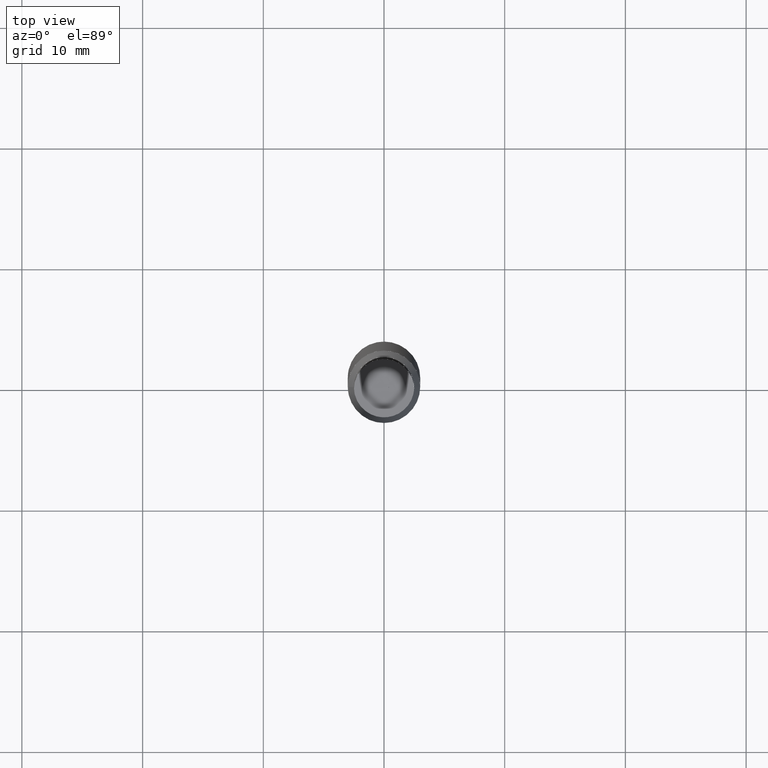
[diagram: clean part render]
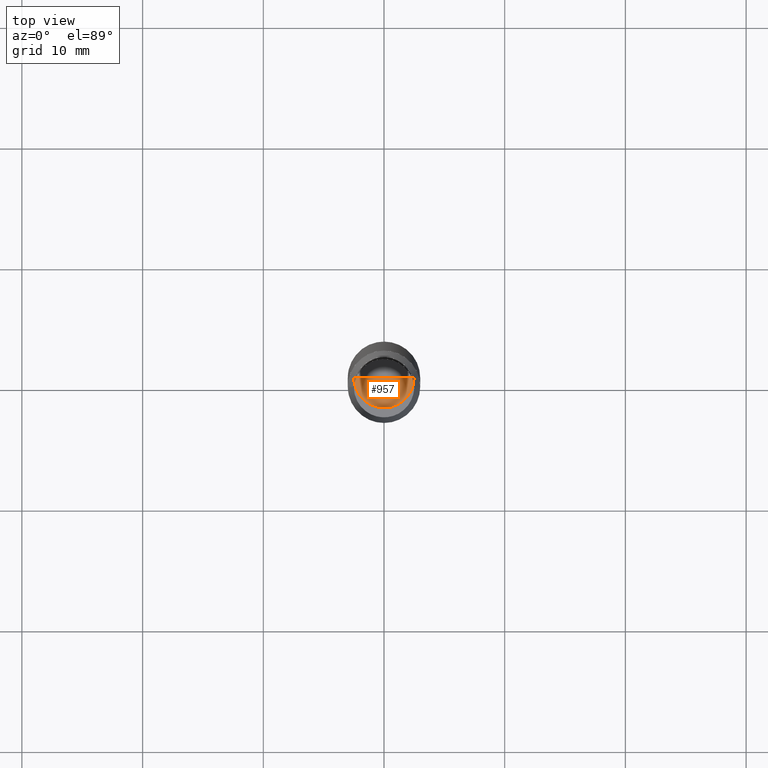
[diagram: same view with one face highlighted and labeled with its STEP entity id]
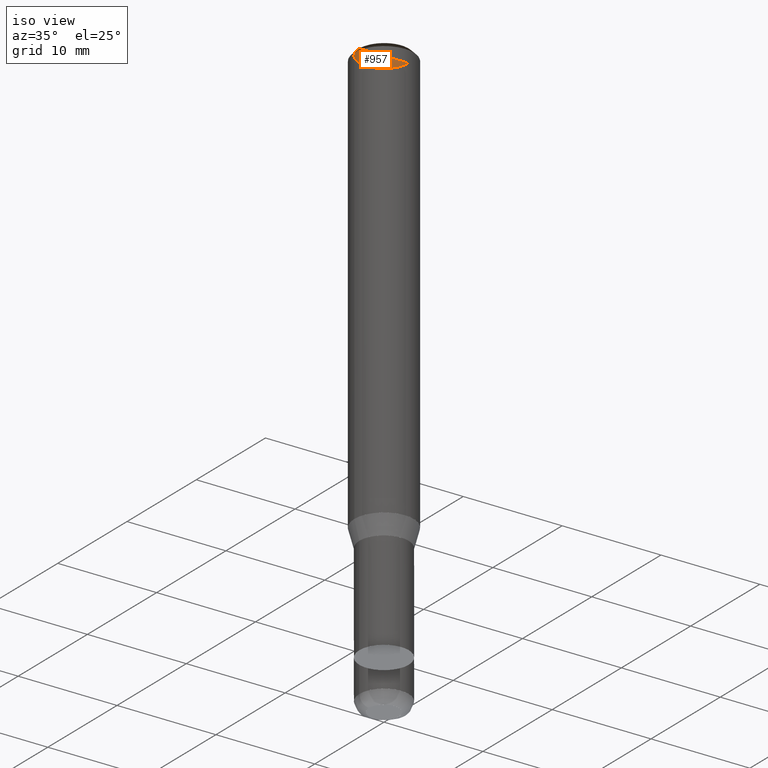
[diagram: same view with one face highlighted and labeled with its STEP entity id]
A machine part, top view. The second image highlights one B-rep face of the part: STEP entity #957.
A second angle (iso view) of the same face is appended — the face is thin or edge-on in the first view.
In plain terms, the highlighted face is a freeform B-spline surface patch.
Its self-contained STEP definition (entity closure, byte-faithful):
#561=CARTESIAN_POINT('',(2.5,0.0,43.133974596216));
#565=CARTESIAN_POINT('',(-2.5,0.0,43.133974596216));
#566=CARTESIAN_POINT('',(0.0,0.0,43.133974596216));
#576=CARTESIAN_POINT('',(-2.5,-2.5,43.133974596216));
#577=CARTESIAN_POINT('',(0.0,-2.5,43.133974596216));
#578=CARTESIAN_POINT('',(2.5,-2.5,43.133974596216));
#942=(
BOUNDED_SURFACE()
B_SPLINE_SURFACE(1,2,(
(#565,#576,#577,#578,#561),
(#566,#566,#566,#566,#566)
), .UNSPECIFIED.,.F.,.F.,.F.)
B_SPLINE_SURFACE_WITH_KNOTS((2,2),(3,2,3),(
0.0,1.0),(
0.0,0.5,1.0), .UNSPECIFIED.)
GEOMETRIC_REPRESENTATION_ITEM()
RATIONAL_B_SPLINE_SURFACE(((1.0,0.707106781187,1.0,0.707106781187,1.0),
(1.0,0.707106781187,1.0,0.707106781187,1.0)
))
REPRESENTATION_ITEM('')
SURFACE()
);
#943=(
BOUNDED_CURVE()
B_SPLINE_CURVE(1,(#566,#561),.UNSPECIFIED.,.F.,.F.)
B_SPLINE_CURVE_WITH_KNOTS((2,2),
(0.0,1.0),.UNSPECIFIED.)
CURVE()
GEOMETRIC_REPRESENTATION_ITEM()
RATIONAL_B_SPLINE_CURVE((1.0,1.0))
REPRESENTATION_ITEM('')
);
#944=(
BOUNDED_CURVE()
B_SPLINE_CURVE(2,(#561,#578,#577,#576,#565),.UNSPECIFIED.,.F.,.F.)
B_SPLINE_CURVE_WITH_KNOTS((3,2,3),
(0.0,0.5,1.0),.UNSPECIFIED.)
CURVE()
GEOMETRIC_REPRESENTATION_ITEM()
RATIONAL_B_SPLINE_CURVE((1.0,0.707106781187,1.0,0.707106781187,1.0))
REPRESENTATION_ITEM('')
);
#945=(
BOUNDED_CURVE()
B_SPLINE_CURVE(1,(#565,#566),.UNSPECIFIED.,.F.,.F.)
B_SPLINE_CURVE_WITH_KNOTS((2,2),
(0.0,1.0),.UNSPECIFIED.)
CURVE()
GEOMETRIC_REPRESENTATION_ITEM()
RATIONAL_B_SPLINE_CURVE((1.0,1.0))
REPRESENTATION_ITEM('')
);
#946=VERTEX_POINT('',#561);
#947=VERTEX_POINT('',#565);
#948=VERTEX_POINT('',#566);
#949=EDGE_CURVE('',#948,#946,#943,.T.);
#950=EDGE_CURVE('',#946,#947,#944,.T.);
#951=EDGE_CURVE('',#947,#948,#945,.T.);
#952=ORIENTED_EDGE('',*,*,#949,.T.);
#953=ORIENTED_EDGE('',*,*,#950,.T.);
#954=ORIENTED_EDGE('',*,*,#951,.T.);
#955=EDGE_LOOP('',(#952,#953,#954));
#956=FACE_OUTER_BOUND('',#955,.T.);
#957=ADVANCED_FACE('',(#956),#942,.T.);